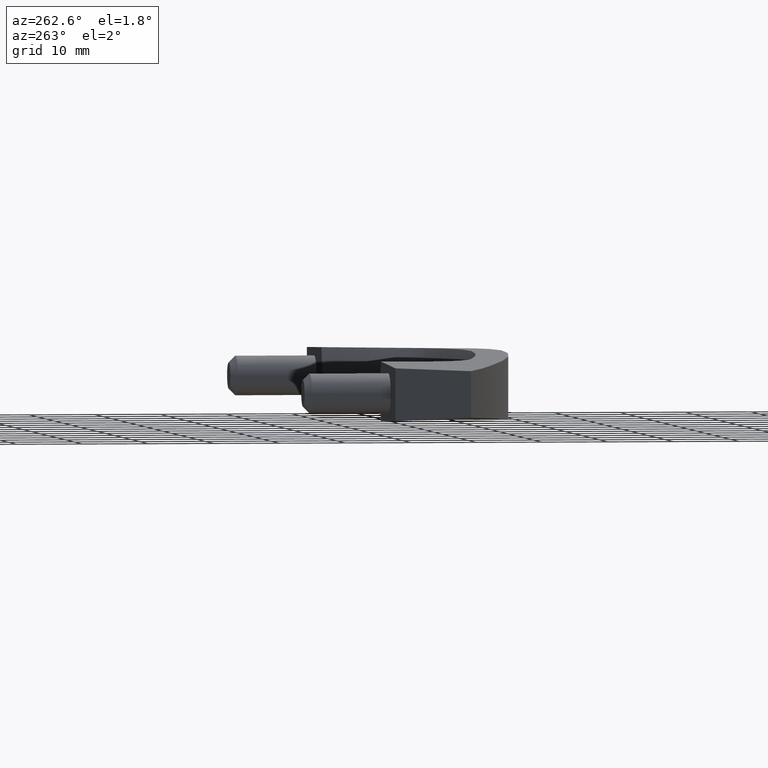
[diagram: clean part render]
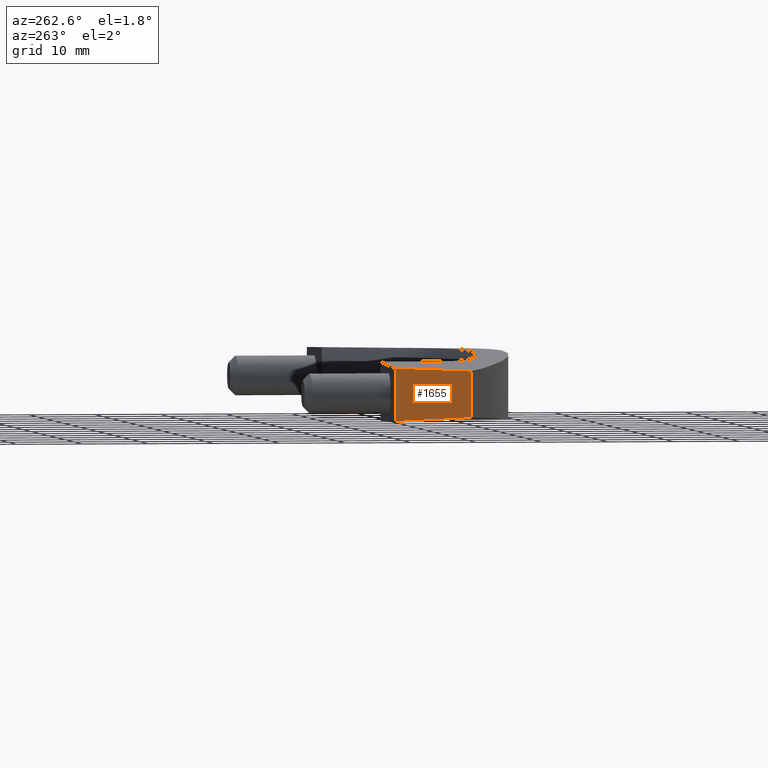
[diagram: same view with one face highlighted and labeled with its STEP entity id]
A machine part, auxiliary view. The second image highlights one B-rep face of the part: STEP entity #1655.
In plain terms, the highlighted face is a freeform B-spline surface patch.
Its self-contained STEP definition (entity closure, byte-faithful):
#865=CARTESIAN_POINT('',(-51.000025265063101,3.500017632523155,11.623590079103939));
#866=VERTEX_POINT('',#865);
#936=CARTESIAN_POINT('',(-51.000025265063002,-3.500017632522965,11.623590079103939));
#937=VERTEX_POINT('',#936);
#938=CARTESIAN_POINT('',(-51.000025265063002,-3.500017632522965,11.623590079103939));
#939=CARTESIAN_POINT('',(-51.000025265063101,3.500017632523155,11.623590079103939));
#940=QUASI_UNIFORM_CURVE('',1,(#938,#939),.UNSPECIFIED.,.F.,.U.);
#941=EDGE_CURVE('',#937,#866,#940,.T.);
#1602=CARTESIAN_POINT('',(-51.999990000002107,-4.0,-2.442491E-012));
#1603=VERTEX_POINT('',#1602);
#1612=CARTESIAN_POINT('',(-51.999990000002200,3.999999999999950,-8.881784E-013));
#1613=VERTEX_POINT('',#1612);
#1614=CARTESIAN_POINT('',(-51.999990000002107,-4.0,-2.442491E-012));
#1615=CARTESIAN_POINT('',(-51.999990000002200,3.999999999999950,-8.881784E-013));
#1616=QUASI_UNIFORM_CURVE('',1,(#1614,#1615),.UNSPECIFIED.,.F.,.U.);
#1617=EDGE_CURVE('',#1603,#1613,#1616,.T.);
#1636=CARTESIAN_POINT('',(-52.049938227188157,-4.399599984494444,-0.580598192811006));
#1637=CARTESIAN_POINT('',(-50.950077002100819,-4.399599984494444,12.204188687603221));
#1638=CARTESIAN_POINT('',(-52.049938227188420,4.399600199071116,-0.580598192810984));
#1639=CARTESIAN_POINT('',(-50.950077002101082,4.399600199071116,12.204188687603240));
#1640=B_SPLINE_SURFACE_WITH_KNOTS('',1,1,((#1636,#1638),(#1637,#1639)),.UNSPECIFIED.,.F.,.F.,.U.,(2,2),(2,2),(0.0,12.832009596788120),(0.0,8.799200183565560),.UNSPECIFIED.);
#1641=CARTESIAN_POINT('',(-51.000025265063002,-3.500017632522965,11.623590079103939));
#1642=CARTESIAN_POINT('',(-51.999990000002107,-4.0,-2.442491E-012));
#1643=QUASI_UNIFORM_CURVE('',1,(#1641,#1642),.UNSPECIFIED.,.F.,.U.);
#1644=EDGE_CURVE('',#937,#1603,#1643,.T.);
#1645=ORIENTED_EDGE('',*,*,#1644,.F.);
#1646=ORIENTED_EDGE('',*,*,#941,.T.);
#1647=CARTESIAN_POINT('',(-51.999990000002200,3.999999999999950,-8.881784E-013));
#1648=CARTESIAN_POINT('',(-51.000025265063101,3.500017632523155,11.623590079103939));
#1649=QUASI_UNIFORM_CURVE('',1,(#1647,#1648),.UNSPECIFIED.,.F.,.U.);
#1650=EDGE_CURVE('',#1613,#866,#1649,.T.);
#1651=ORIENTED_EDGE('',*,*,#1650,.F.);
#1652=ORIENTED_EDGE('',*,*,#1617,.F.);
#1653=EDGE_LOOP('',(#1645,#1646,#1651,#1652));
#1654=FACE_OUTER_BOUND('',#1653,.T.);
#1655=ADVANCED_FACE('',(#1654),#1640,.T.);